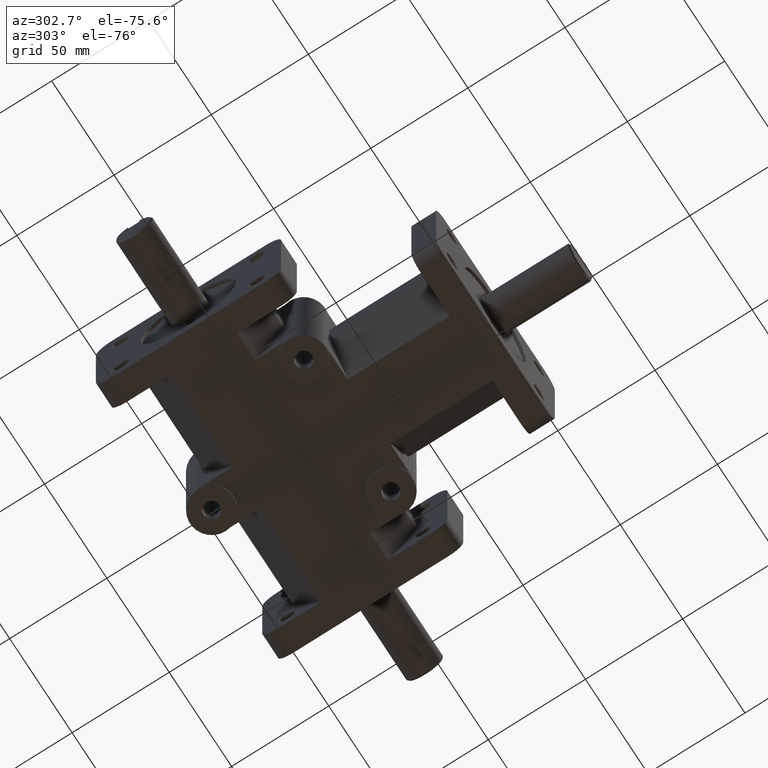
[diagram: clean part render]
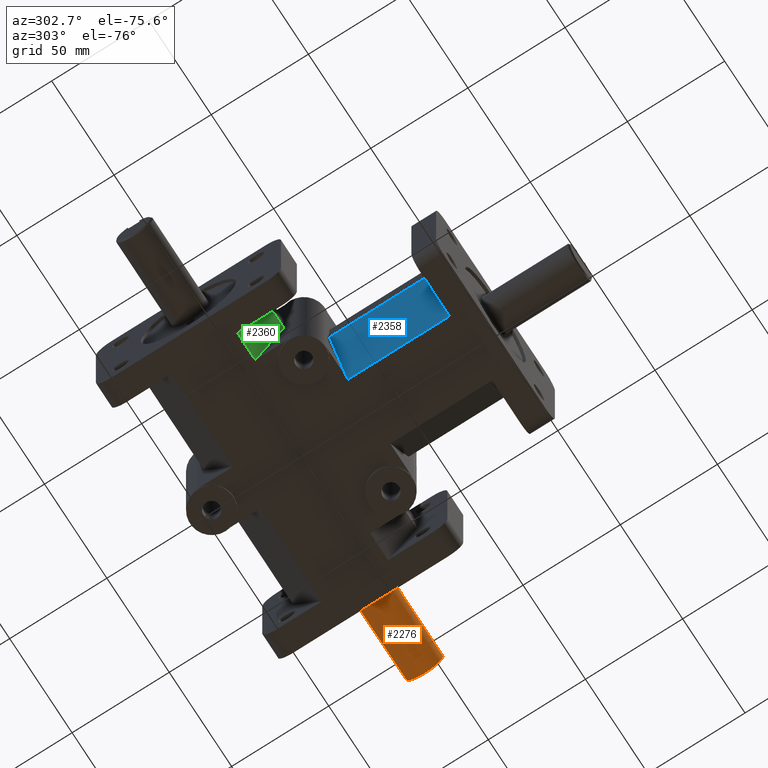
[diagram: same view with three faces highlighted in distinct colors, each labeled with its STEP entity id]
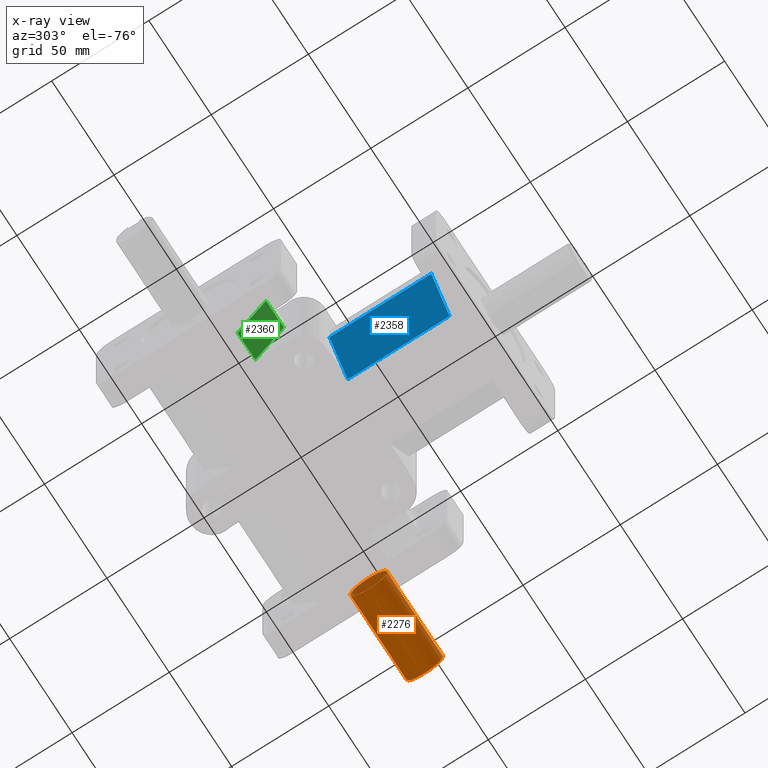
[diagram: x-ray of the same camera — body ghosted, the three highlighted faces saturated]
A machine part, auxiliary view with three faces highlighted in distinct colors.
The next image is the same camera in x-ray (body ghosted, the three faces saturated) — at least one of them is partly hidden behind the body in this view.
Their STEP definitions:

[orange] entity #2276 — the highlighted cylindrical surface (bore or boss wall) has radius 9.5 mm, axis along (1, 0, 0).
#157=FACE_OUTER_BOUND('',#286,.T.);
#286=EDGE_LOOP('',(#1587,#1588,#1589,#1590,#1591,#1592,#1593,#1594));
#455=LINE('',#3363,#677);
#459=LINE('',#3376,#681);
#465=LINE('',#3395,#687);
#677=VECTOR('',#2672,1.);
#681=VECTOR('',#2678,1.);
#687=VECTOR('',#2694,9.5);
#902=CIRCLE('',#2425,9.5);
#903=CIRCLE('',#2427,9.5);
#904=CIRCLE('',#2428,9.5);
#905=CIRCLE('',#2429,9.5);
#1008=VERTEX_POINT('',#3361);
#1009=VERTEX_POINT('',#3362);
#1013=VERTEX_POINT('',#3374);
#1014=VERTEX_POINT('',#3375);
#1018=VERTEX_POINT('',#3392);
#1019=VERTEX_POINT('',#3394);
#1232=EDGE_CURVE('',#1008,#1009,#455,.T.);
#1237=EDGE_CURVE('',#1013,#1014,#459,.T.);
#1244=EDGE_CURVE('',#1014,#1008,#902,.T.);
#1245=EDGE_CURVE('',#1018,#1009,#903,.T.);
#1246=EDGE_CURVE('',#1018,#1019,#465,.T.);
#1247=EDGE_CURVE('',#1019,#1019,#904,.T.);
#1248=EDGE_CURVE('',#1013,#1018,#905,.T.);
#1587=ORIENTED_EDGE('',*,*,#1232,.T.);
#1588=ORIENTED_EDGE('',*,*,#1245,.F.);
#1589=ORIENTED_EDGE('',*,*,#1246,.T.);
#1590=ORIENTED_EDGE('',*,*,#1247,.F.);
#1591=ORIENTED_EDGE('',*,*,#1246,.F.);
#1592=ORIENTED_EDGE('',*,*,#1248,.F.);
#1593=ORIENTED_EDGE('',*,*,#1237,.T.);
#1594=ORIENTED_EDGE('',*,*,#1244,.T.);
#2228=CYLINDRICAL_SURFACE('',#2426,9.5);
#2276=ADVANCED_FACE('',(#157),#2228,.T.);
#2425=AXIS2_PLACEMENT_3D('',#3390,#2688,#2689);
#2426=AXIS2_PLACEMENT_3D('',#3391,#2690,#2691);
#2427=AXIS2_PLACEMENT_3D('',#3393,#2692,#2693);
#2428=AXIS2_PLACEMENT_3D('',#3396,#2695,#2696);
#2429=AXIS2_PLACEMENT_3D('',#3397,#2697,#2698);
#2672=DIRECTION('',(1.,0.,0.));
#2678=DIRECTION('',(-1.,0.,0.));
#2688=DIRECTION('center_axis',(-1.,0.,0.));
#2689=DIRECTION('ref_axis',(0.,1.,0.));
#2690=DIRECTION('center_axis',(1.,0.,0.));
#2691=DIRECTION('ref_axis',(0.,1.,0.));
#2692=DIRECTION('center_axis',(1.,0.,0.));
#2693=DIRECTION('ref_axis',(0.,-1.,0.));
#2694=DIRECTION('',(-1.,0.,0.));
#2695=DIRECTION('center_axis',(-1.,0.,0.));
#2696=DIRECTION('ref_axis',(0.,1.,0.));
#2697=DIRECTION('center_axis',(1.,0.,0.));
#2698=DIRECTION('ref_axis',(0.,-1.,0.));
#3361=CARTESIAN_POINT('',(78.925,114.125,9.01387818865997));
#3362=CARTESIAN_POINT('',(116.263,114.125,9.01387818865997));
#3363=CARTESIAN_POINT('',(94.263,114.125,9.01387818865997));
#3374=CARTESIAN_POINT('',(116.263,108.125,9.01387818865997));
#3375=CARTESIAN_POINT('',(78.925,108.125,9.01387818865997));
#3376=CARTESIAN_POINT('',(94.263,108.125,9.01387818865997));
#3390=CARTESIAN_POINT('Origin',(78.925,111.125,0.));
#3391=CARTESIAN_POINT('Origin',(94.263,111.125,0.));
#3392=CARTESIAN_POINT('',(116.263,101.625,-1.16341445918999E-15));
#3393=CARTESIAN_POINT('Origin',(116.263,111.125,0.));
#3394=CARTESIAN_POINT('',(71.501,101.625,-1.16341445918999E-15));
#3395=CARTESIAN_POINT('',(94.263,101.625,-1.16341445918999E-15));
#3396=CARTESIAN_POINT('Origin',(71.501,111.125,0.));
#3397=CARTESIAN_POINT('Origin',(116.263,111.125,0.));

[blue] entity #2358 — the highlighted planar face has unit normal (-0.866, 0, -0.5).
#112=PLANE('',#2607);
#239=FACE_OUTER_BOUND('',#396,.T.);
#396=EDGE_LOOP('',(#2023,#2024,#2025,#2026));
#547=LINE('',#3706,#769);
#629=LINE('',#3943,#851);
#630=LINE('',#3945,#852);
#631=LINE('',#3946,#853);
#769=VECTOR('',#2982,1.);
#851=VECTOR('',#3218,1.);
#852=VECTOR('',#3219,1.);
#853=VECTOR('',#3220,1.);
#1132=VERTEX_POINT('',#3703);
#1133=VERTEX_POINT('',#3705);
#1211=VERTEX_POINT('',#3942);
#1212=VERTEX_POINT('',#3944);
#1393=EDGE_CURVE('',#1133,#1132,#547,.T.);
#1512=EDGE_CURVE('',#1211,#1133,#629,.F.);
#1513=EDGE_CURVE('',#1132,#1212,#630,.F.);
#1514=EDGE_CURVE('',#1212,#1211,#631,.T.);
#2023=ORIENTED_EDGE('',*,*,#1512,.T.);
#2024=ORIENTED_EDGE('',*,*,#1393,.T.);
#2025=ORIENTED_EDGE('',*,*,#1513,.T.);
#2026=ORIENTED_EDGE('',*,*,#1514,.T.);
#2358=ADVANCED_FACE('',(#239),#112,.T.);
#2607=AXIS2_PLACEMENT_3D('',#3941,#3216,#3217);
#2982=DIRECTION('',(0.,-1.,0.));
#3216=DIRECTION('center_axis',(-0.866025504730542,0.,-0.499999825156179));
#3217=DIRECTION('ref_axis',(0.,1.,0.));
#3218=DIRECTION('',(-0.499999825156179,0.,0.866025504730542));
#3219=DIRECTION('',(0.499999825156179,0.,-0.866025504730542));
#3220=DIRECTION('',(0.,1.,0.));
#3703=CARTESIAN_POINT('',(-17.08531,12.7,-31.75));
#3705=CARTESIAN_POINT('',(-17.08531,65.0875,-31.75));
#3706=CARTESIAN_POINT('',(-17.08531,73.9437028726981,-31.75));
#3941=CARTESIAN_POINT('Origin',(-24.417655,73.9437028726981,-19.05));
#3942=CARTESIAN_POINT('',(-31.75,65.0875,-6.35));
#3943=CARTESIAN_POINT('',(-29.8555172304392,65.0875,-9.63134194086908));
#3944=CARTESIAN_POINT('',(-31.75,12.7,-6.35));
#3945=CARTESIAN_POINT('',(-29.4586425080037,12.7,-10.318749444871));
#3946=CARTESIAN_POINT('',(-31.75,73.9437028726981,-6.35));

[green] entity #2360 — the highlighted planar face has unit normal (0, -0.866, -0.5).
#114=PLANE('',#2609);
#241=FACE_OUTER_BOUND('',#398,.T.);
#398=EDGE_LOOP('',(#2031,#2032,#2033,#2034));
#535=LINE('',#3677,#757);
#550=LINE('',#3713,#772);
#634=LINE('',#3953,#856);
#635=LINE('',#3954,#857);
#757=VECTOR('',#2960,1.);
#772=VECTOR('',#2987,1.);
#856=VECTOR('',#3227,1.);
#857=VECTOR('',#3228,1.);
#1120=VERTEX_POINT('',#3674);
#1121=VERTEX_POINT('',#3676);
#1136=VERTEX_POINT('',#3711);
#1214=VERTEX_POINT('',#3952);
#1377=EDGE_CURVE('',#1121,#1120,#535,.F.);
#1397=EDGE_CURVE('',#1120,#1136,#550,.T.);
#1517=EDGE_CURVE('',#1136,#1214,#634,.F.);
#1518=EDGE_CURVE('',#1214,#1121,#635,.T.);
#2031=ORIENTED_EDGE('',*,*,#1377,.T.);
#2032=ORIENTED_EDGE('',*,*,#1397,.T.);
#2033=ORIENTED_EDGE('',*,*,#1517,.T.);
#2034=ORIENTED_EDGE('',*,*,#1518,.T.);
#2360=ADVANCED_FACE('',(#241),#114,.T.);
#2609=AXIS2_PLACEMENT_3D('',#3951,#3225,#3226);
#2960=DIRECTION('',(0.,-0.499999825156179,0.866025504730542));
#2987=DIRECTION('',(1.,0.,0.));
#3225=DIRECTION('center_axis',(0.,-0.866025504730542,-0.499999825156179));
#3226=DIRECTION('ref_axis',(0.,-0.499999825156179,0.866025504730542));
#3227=DIRECTION('',(0.,0.499999825156179,-0.866025504730542));
#3228=DIRECTION('',(-1.,0.,0.));
#3674=CARTESIAN_POINT('',(-60.325,94.03969,-31.75));
#3676=CARTESIAN_POINT('',(-60.325,79.375,-6.35));
#3677=CARTESIAN_POINT('',(-60.325,79.6819838798188,-6.88171192486159));
#3711=CARTESIAN_POINT('',(-46.0375,94.03969,-31.75));
#3713=CARTESIAN_POINT('',(-30.1625,94.03969,-31.75));
#3951=CARTESIAN_POINT('Origin',(-30.1625,86.707345,-19.05));
#3952=CARTESIAN_POINT('',(-46.0375,79.375,-6.35));
#3953=CARTESIAN_POINT('',(-46.0375,81.6663574919962,-10.318749444871));
#3954=CARTESIAN_POINT('',(-30.1625,79.375,-6.35));